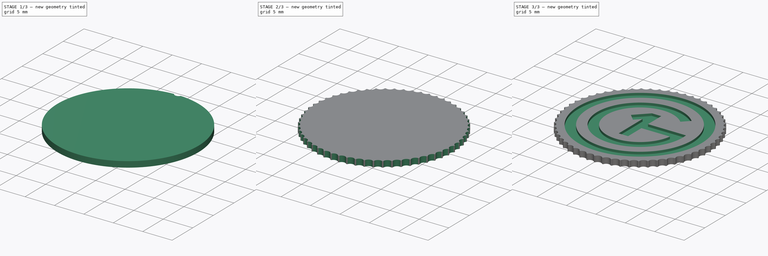
[diagram: build sequence overview — one tinted view per stage of 3, left to right]
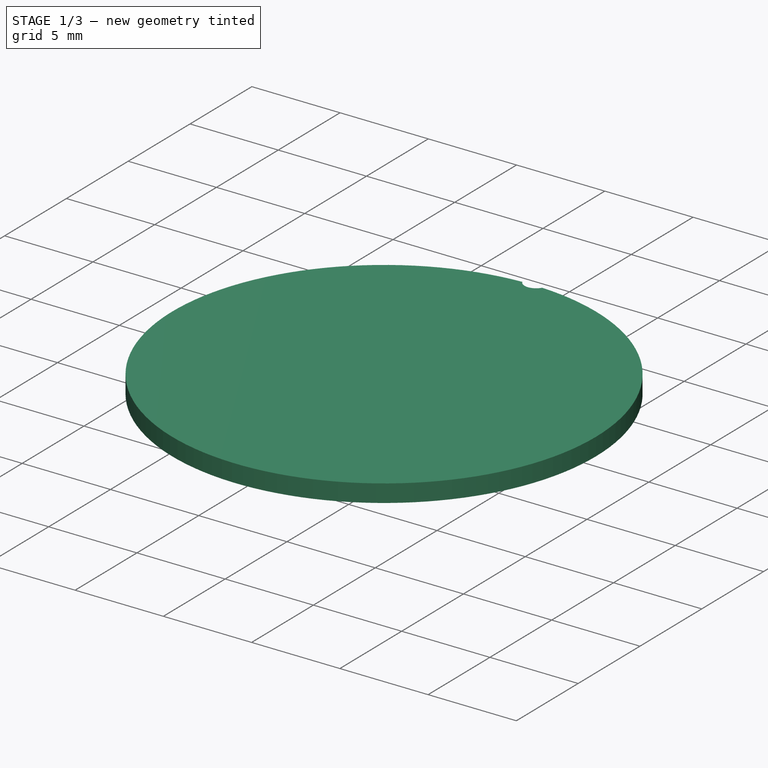
[diagram: stage 1 of 3 — iso view after this stage's code; geometry added in this stage tinted green]
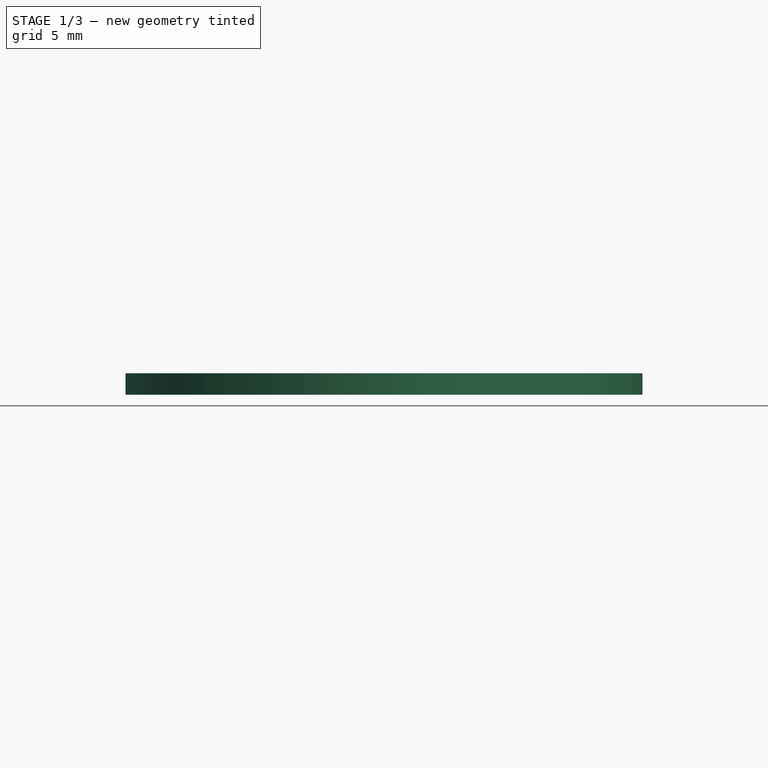
[diagram: stage 1 of 3 — front view after this stage's code; geometry added in this stage tinted green]
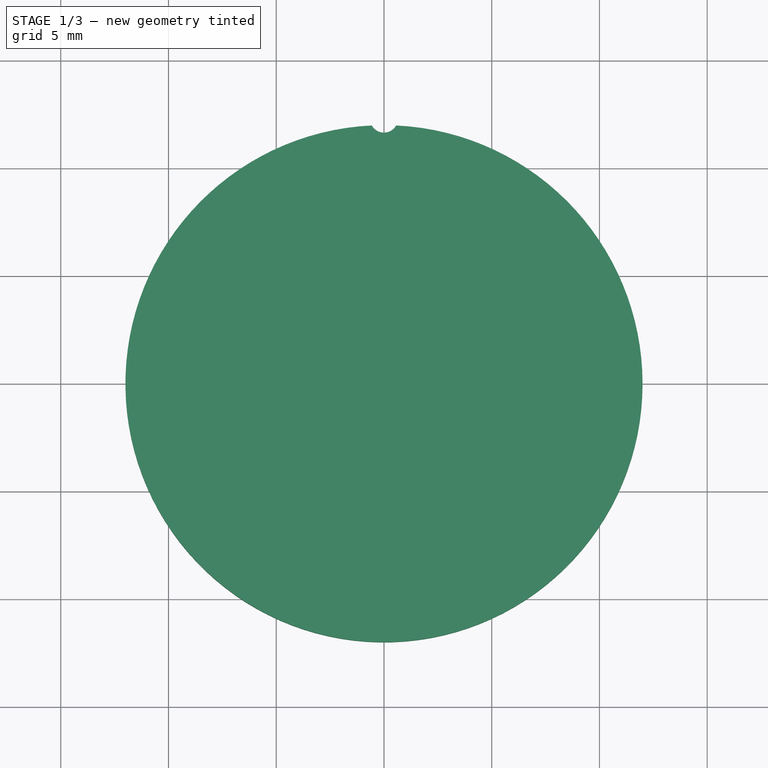
[diagram: stage 1 of 3 — top view after this stage's code; geometry added in this stage tinted green]
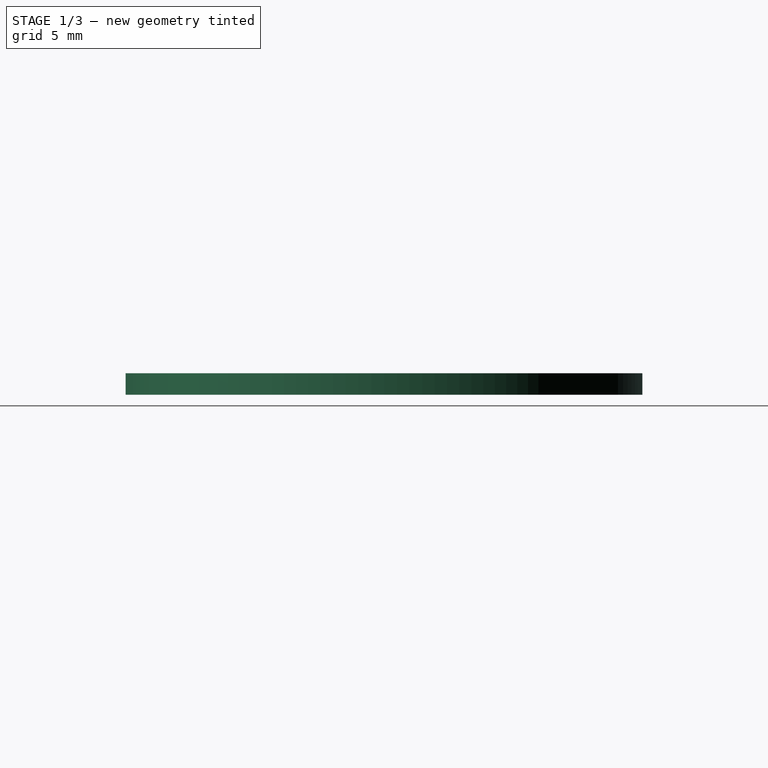
[diagram: stage 1 of 3 — right view after this stage's code; geometry added in this stage tinted green]
FCSTD DOCUMENT  (FreeCAD 0.18.1R)
Label: O1GCoinTest
License: All rights reserved
LicenseURL: http://en.wikipedia.org/wiki/All_rights_reserved
objects: Sketcher::SketchObject×3, PartDesign::Pocket×3, PartDesign::AdditiveCylinder×1, PartDesign::PolarPattern×1, PartDesign::Body×1, App::Part×1
note: 13 computed .brp shape members not serialized (recipe doc carries the construction recipe); baked Part::Feature solids carry a one-line shape summary decoded from their .brp

FEATURE [Sketcher::SketchObject] Sketch
  MapMode = 5
  Support = -> [XY_Plane001]
  sketch-geometry (5):
    g0: LineSegment StartX=-0.644616 StartY=12.3 StartZ=0 EndX=0.644616 EndY=12.3 EndZ=0
    g1: LineSegment [constr] StartX=-0.644616 StartY=12.3 StartZ=0 EndX=0 EndY=0 EndZ=0
    g2: LineSegment [constr] StartX=0 StartY=0 StartZ=0 EndX=0.644616 EndY=12.3 EndZ=0
    g3: ArcOfCircle CenterX=0 CenterY=12.3 CenterZ=0 NormalX=0 NormalY=0 NormalZ=1 AngleXU=0 Radius=0.644616 StartAngle=3.14159 EndAngle=6.28319
    g4: Circle [constr] CenterX=0 CenterY=0 CenterZ=0 NormalX=0 NormalY=0 NormalZ=1 AngleXU=0 Radius=12
  constraints (12):
    c: DistanceY(g-1,g0) = 12.3
    c: Symmetric(g0,g0,g-2)
    c: Coincident(g0,g1)
    c: Coincident(g1,g-1)
    c: Coincident(g1,g2)
    c: Coincident(g2,g0)
    c: PointOnObject(g3,g0)
    c: Coincident(g3,g0)
    c: Coincident(g3,g0)
    c: Angle(g2,g1) = 0.10472
    c: Coincident(g4,g-1)
    c: Radius(g4) = 12
FEATURE [PartDesign::AdditiveCylinder] Cylinder
  Angle = 360
  AttacherType = Attacher::AttachEngine3D
  Height = 1
  Radius = 12
FEATURE [PartDesign::Pocket] Pocket
  BaseFeature = -> Cylinder
  Length = 1
  Length2 = 100
  Profile = -> Sketch
  Reversed = true
  Type = 0
  expr: Length = Cylinder.Height
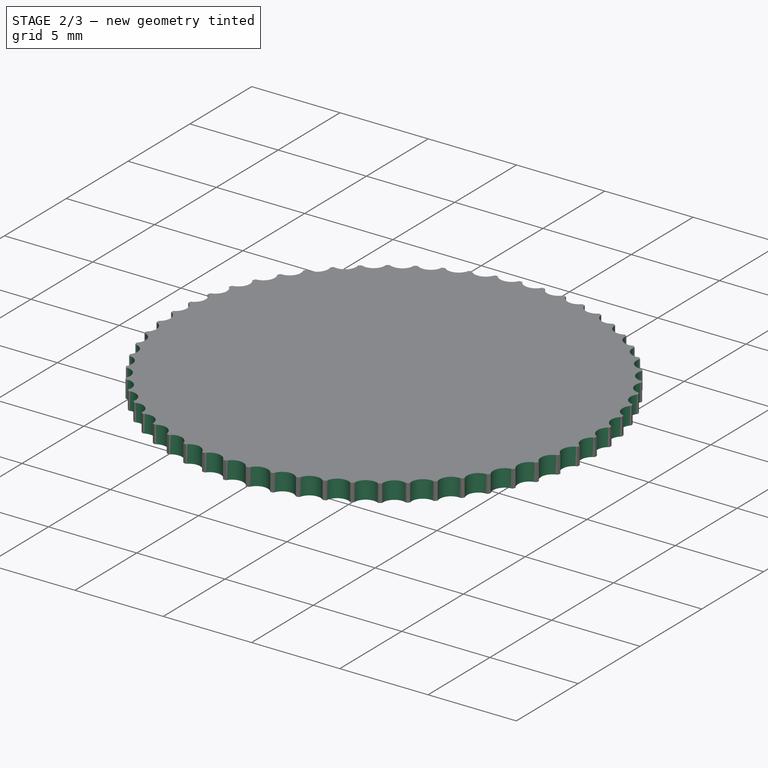
[diagram: stage 2 of 3 — iso view after this stage's code; geometry added in this stage tinted green]
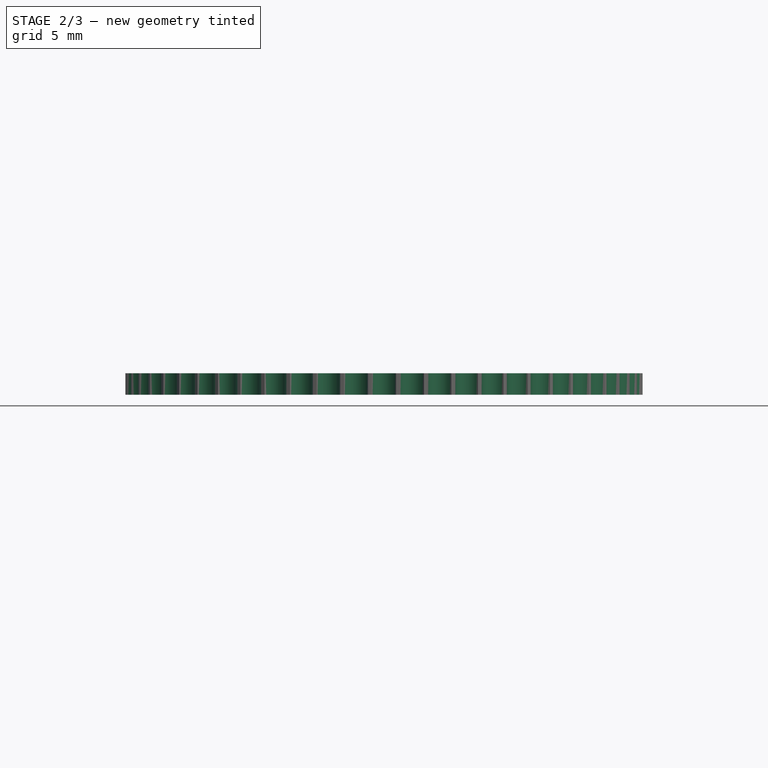
[diagram: stage 2 of 3 — front view after this stage's code; geometry added in this stage tinted green]
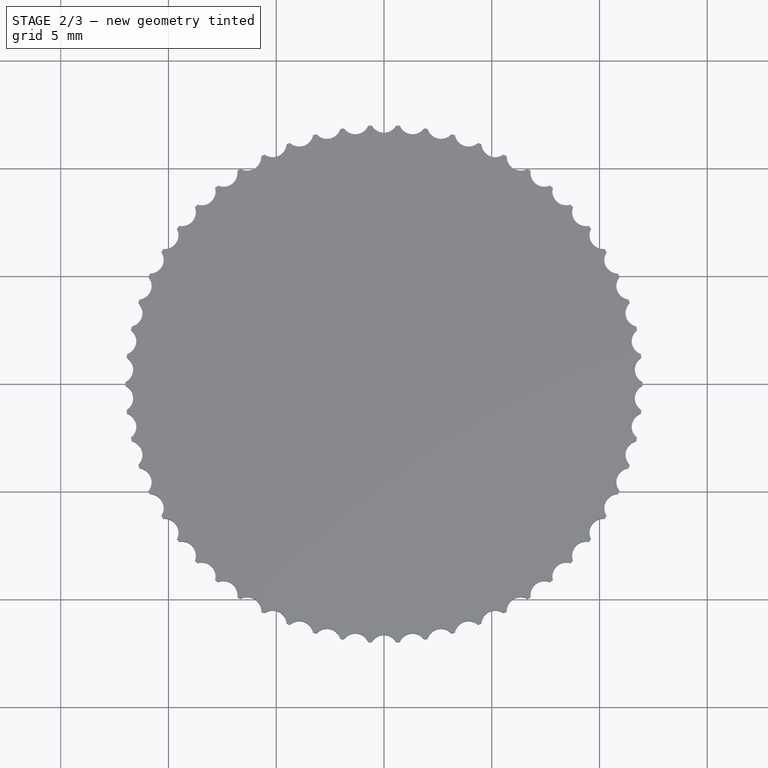
[diagram: stage 2 of 3 — top view after this stage's code; geometry added in this stage tinted green]
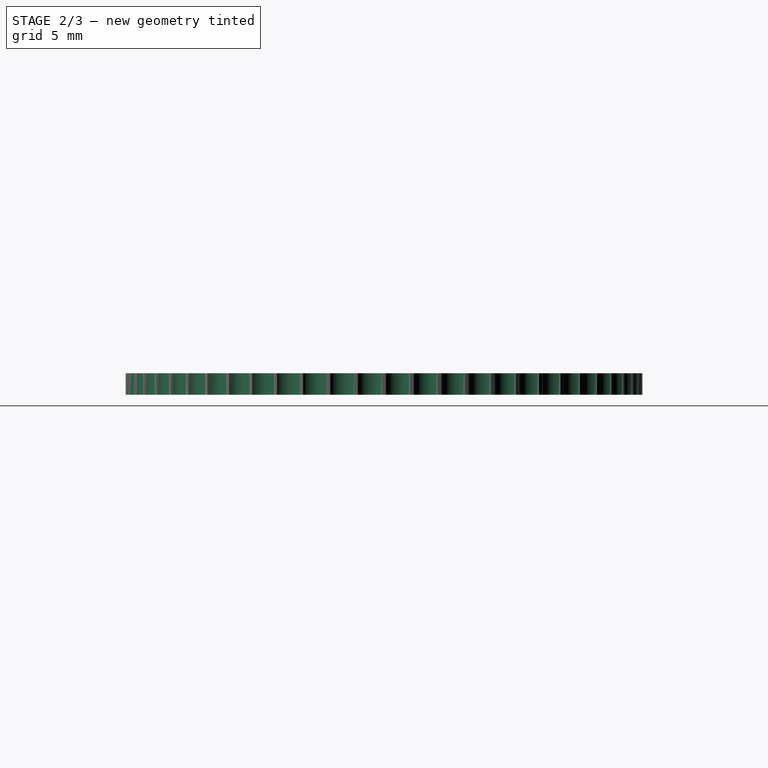
[diagram: stage 2 of 3 — right view after this stage's code; geometry added in this stage tinted green]
FEATURE [PartDesign::PolarPattern] PolarPattern
  Angle = 360
  Axis = -> Sketch [N_Axis]
  BaseFeature = -> Pocket
  Occurrences = 58
  Originals = -> [Pocket]
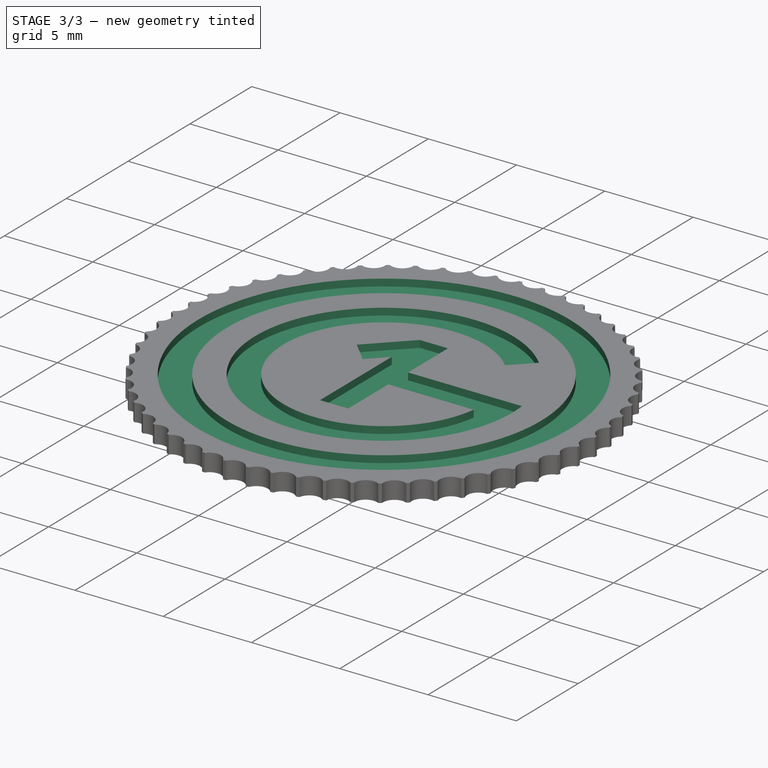
[diagram: stage 3 of 3 — iso view after this stage's code; geometry added in this stage tinted green]
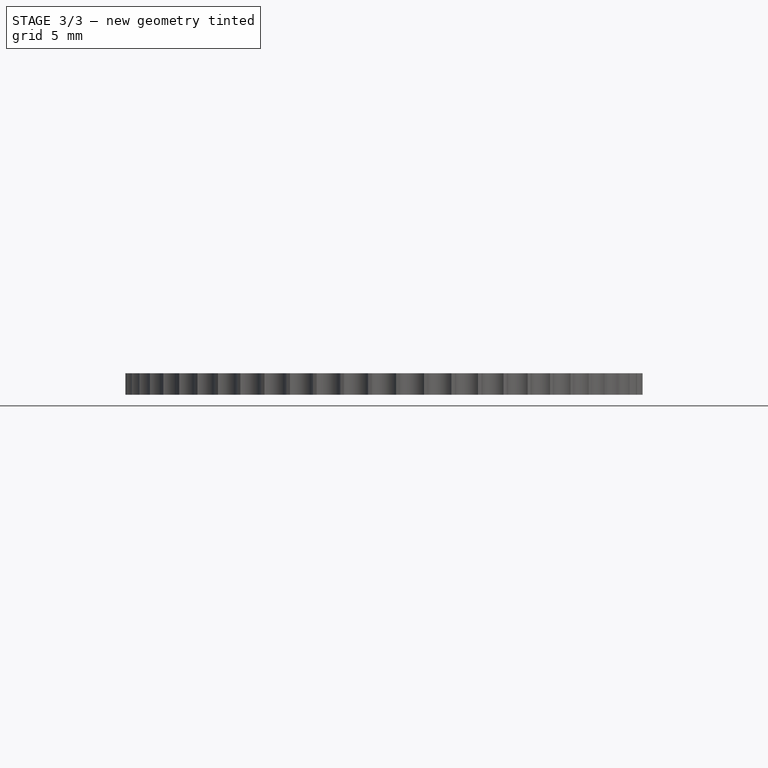
[diagram: stage 3 of 3 — front view after this stage's code; geometry added in this stage tinted green]
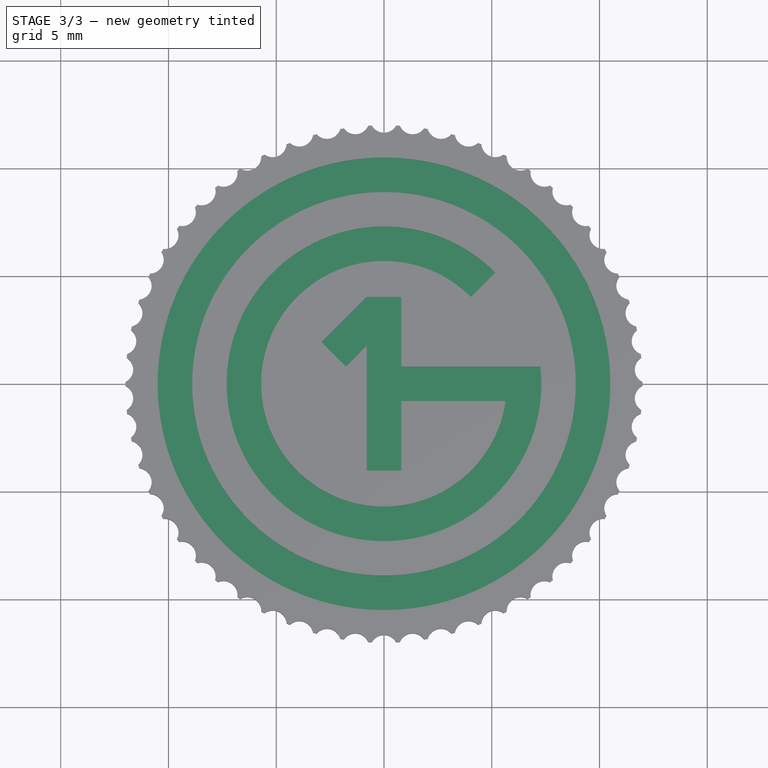
[diagram: stage 3 of 3 — top view after this stage's code; geometry added in this stage tinted green]
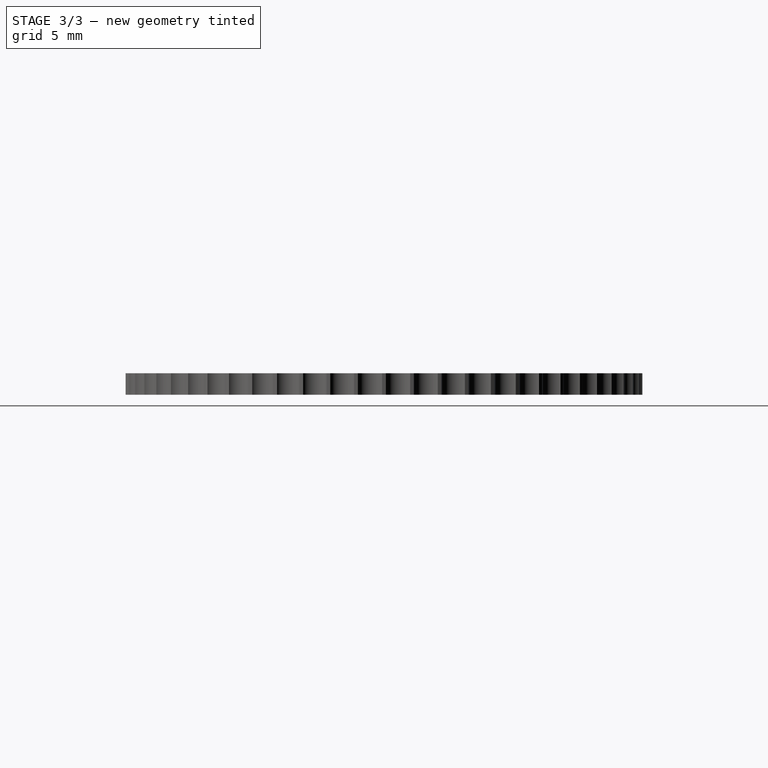
[diagram: stage 3 of 3 — right view after this stage's code; geometry added in this stage tinted green]
FEATURE [Sketcher::SketchObject] Sketch003  label="OF"
  Placement = pos=(0,0,1) rot=(0,0,1;0rad)
  expr: Placement.Base.z = Cylinder.Height
  sketch-geometry (19):
    g0: Circle CenterX=0 CenterY=0 CenterZ=0 NormalX=0 NormalY=0 NormalZ=1 AngleXU=0 Radius=10.5
    g1: Circle CenterX=0 CenterY=0 CenterZ=0 NormalX=0 NormalY=0 NormalZ=1 AngleXU=0 Radius=8.9
    g2: ArcOfCircle [constr] CenterX=0 CenterY=0 CenterZ=0 NormalX=0 NormalY=0 NormalZ=1 AngleXU=0 Radius=7.3 StartAngle=0.785398 EndAngle=6.39299
    g3: ArcOfCircle [constr] CenterX=0 CenterY=0 CenterZ=0 NormalX=0 NormalY=0 NormalZ=1 AngleXU=0 Radius=5.7 StartAngle=0.785398 EndAngle=6.14237
    g4: LineSegment [constr] StartX=4.03051 StartY=4.03051 StartZ=0 EndX=5.16188 EndY=5.16188 EndZ=0
    g5: LineSegment [constr] StartX=0 StartY=0 StartZ=0 EndX=4.03051 EndY=4.03051 EndZ=0
    g6: LineSegment [constr] StartX=5.64358 StartY=-0.8 StartZ=0 EndX=0.8 EndY=-0.8 EndZ=0
    g7: LineSegment [constr] StartX=7.25603 StartY=0.8 StartZ=0 EndX=0.8 EndY=0.8 EndZ=0
    g8: LineSegment [constr] StartX=0.8 StartY=-0.8 StartZ=0 EndX=0.8 EndY=0.8 EndZ=0
    g9: LineSegment [constr] StartX=0.8 StartY=-0.8 StartZ=0 EndX=0.8 EndY=-4.03051 EndZ=0
    g10: LineSegment [constr] StartX=0.8 StartY=-4.03051 StartZ=0 EndX=-0.8 EndY=-4.03051 EndZ=0
    g11: LineSegment [constr] StartX=-0.8 StartY=-4.03051 StartZ=0 EndX=-0.8 EndY=1.76777 EndZ=0
    g12: LineSegment [constr] StartX=-0.8 StartY=1.76777 StartZ=0 EndX=-1.76777 EndY=0.8 EndZ=0
    g13: LineSegment [constr] StartX=-1.76777 StartY=0.8 StartZ=0 EndX=-2.89914 EndY=1.93137 EndZ=0
    g14: LineSegment [constr] StartX=-2.89914 StartY=1.93137 StartZ=0 EndX=-0.8 EndY=4.03051 EndZ=0
    g15: LineSegment [constr] StartX=-0.8 StartY=4.03051 StartZ=0 EndX=0.8 EndY=4.03051 EndZ=0
    g16: LineSegment [constr] StartX=0.8 StartY=4.03051 StartZ=0 EndX=0.8 EndY=0.8 EndZ=0
    g17: LineSegment [constr] StartX=0.8 StartY=4.03051 StartZ=0 EndX=4.03051 EndY=4.03051 EndZ=0
    g18: LineSegment [constr] StartX=-1.76777 StartY=0.8 StartZ=0 EndX=0.8 EndY=0.8 EndZ=0
  constraints (49):
    c: Coincident(g1,g0)
    c: Radius(g0) = 10.5
    c: Radius(g1) = 8.9
    c: Coincident(g0,g-1)
    c: Coincident(g4,g3)
    c: Coincident(g4,g2)
    c: Coincident(g5,g3)
    c: Parallel(g5,g4)
    c: Radius(g2) = 7.3
    c: Radius(g3) = 5.7
    c: Coincident(g6,g3)
    c: Horizontal(g6)
    c: Coincident(g7,g2)
    c: Horizontal(g7)
    c: Coincident(g8,g6)
    c: Coincident(g8,g7)
    c: Symmetric(g7,g6,g-1)
    c: Equal(g8,g4)
    c: Coincident(g6,g9)
    c: Vertical(g9)
    c: Coincident(g9,g10)
    c: Coincident(g10,g11)
    c: Vertical(g11)
    c: Coincident(g11,g12)
    c: Coincident(g12,g13)
    c: Coincident(g13,g14)
    c: Coincident(g14,g15)
    c: Horizontal(g15)
    c: Coincident(g15,g16)
    c: Coincident(g16,g7)
    c: Vertical(g16)
    c: Symmetric(g10,g9,g-2)
    c: Equal(g8,g10)
    c: Equal(g10,g13)
    c: Equal(g13,g15)
    c: Angle(g-1,g5) = 0.785398
    c: Parallel(g5,g12)
    c: Parallel(g12,g14)
    c: Perpendicular(g12,g13)
    c: Equal(g9,g16)
    c: Coincident(g17,g15)
    c: Coincident(g17,g3)
    c: Horizontal(g17)
    c: Coincident(g18,g12)
    c: Coincident(g18,g7)
    c: Horizontal(g18)
    c: Coincident(g2,g3)
    c: Coincident(g2,g5)
    c: Coincident(g2,g-1)
FEATURE [Sketcher::SketchObject] Sketch004  label="1GF"
  Placement = pos=(0,0,1) rot=(0,0,1;0rad)
  expr: Placement.Base.z = Cylinder.Height
  sketch-geometry (19):
    g0: Circle [constr] CenterX=0 CenterY=0 CenterZ=0 NormalX=0 NormalY=0 NormalZ=1 AngleXU=0 Radius=10.5
    g1: Circle [constr] CenterX=0 CenterY=0 CenterZ=0 NormalX=0 NormalY=0 NormalZ=1 AngleXU=0 Radius=8.9
    g2: ArcOfCircle CenterX=0 CenterY=0 CenterZ=0 NormalX=0 NormalY=0 NormalZ=1 AngleXU=0 Radius=7.3 StartAngle=0.785398 EndAngle=6.39299
    g3: ArcOfCircle CenterX=0 CenterY=0 CenterZ=0 NormalX=0 NormalY=0 NormalZ=1 AngleXU=0 Radius=5.7 StartAngle=0.785398 EndAngle=6.14237
    g4: LineSegment StartX=4.03051 StartY=4.03051 StartZ=0 EndX=5.16188 EndY=5.16188 EndZ=0
    g5: LineSegment [constr] StartX=0 StartY=0 StartZ=0 EndX=4.03051 EndY=4.03051 EndZ=0
    g6: LineSegment StartX=5.64358 StartY=-0.8 StartZ=0 EndX=0.8 EndY=-0.8 EndZ=0
    g7: LineSegment StartX=7.25603 StartY=0.8 StartZ=0 EndX=0.8 EndY=0.8 EndZ=0
    g8: LineSegment [constr] StartX=0.8 StartY=-0.8 StartZ=0 EndX=0.8 EndY=0.8 EndZ=0
    g9: LineSegment StartX=0.8 StartY=-0.8 StartZ=0 EndX=0.8 EndY=-4.03051 EndZ=0
    g10: LineSegment StartX=0.8 StartY=-4.03051 StartZ=0 EndX=-0.8 EndY=-4.03051 EndZ=0
    g11: LineSegment StartX=-0.8 StartY=-4.03051 StartZ=0 EndX=-0.8 EndY=1.76777 EndZ=0
    g12: LineSegment StartX=-0.8 StartY=1.76777 StartZ=0 EndX=-1.76777 EndY=0.8 EndZ=0
    g13: LineSegment StartX=-1.76777 StartY=0.8 StartZ=0 EndX=-2.89914 EndY=1.93137 EndZ=0
    g14: LineSegment StartX=-2.89914 StartY=1.93137 StartZ=0 EndX=-0.8 EndY=4.03051 EndZ=0
    g15: LineSegment StartX=-0.8 StartY=4.03051 StartZ=0 EndX=0.8 EndY=4.03051 EndZ=0
    g16: LineSegment StartX=0.8 StartY=4.03051 StartZ=0 EndX=0.8 EndY=0.8 EndZ=0
    g17: LineSegment [constr] StartX=0.8 StartY=4.03051 StartZ=0 EndX=4.03051 EndY=4.03051 EndZ=0
    g18: LineSegment [constr] StartX=-1.76777 StartY=0.8 StartZ=0 EndX=0.8 EndY=0.8 EndZ=0
  constraints (49):
    c: Coincident(g1,g0)
    c: Radius(g0) = 10.5
    c: Radius(g1) = 8.9
    c: Coincident(g0,g-1)
    c: Coincident(g4,g3)
    c: Coincident(g4,g2)
    c: Coincident(g5,g3)
    c: Parallel(g5,g4)
    c: Radius(g2) = 7.3
    c: Radius(g3) = 5.7
    c: Coincident(g6,g3)
    c: Horizontal(g6)
    c: Coincident(g7,g2)
    c: Horizontal(g7)
    c: Coincident(g8,g6)
    c: Coincident(g8,g7)
    c: Symmetric(g7,g6,g-1)
    c: Equal(g8,g4)
    c: Coincident(g6,g9)
    c: Vertical(g9)
    c: Coincident(g9,g10)
    c: Coincident(g10,g11)
    c: Vertical(g11)
    c: Coincident(g11,g12)
    c: Coincident(g12,g13)
    c: Coincident(g13,g14)
    c: Coincident(g14,g15)
    c: Horizontal(g15)
    c: Coincident(g15,g16)
    c: Coincident(g16,g7)
    c: Vertical(g16)
    c: Symmetric(g10,g9,g-2)
    c: Equal(g8,g10)
    c: Equal(g10,g13)
    c: Equal(g13,g15)
    c: Angle(g-1,g5) = 0.785398
    c: Parallel(g5,g12)
    c: Parallel(g12,g14)
    c: Perpendicular(g12,g13)
    c: Equal(g9,g16)
    c: Coincident(g17,g15)
    c: Coincident(g17,g3)
    c: Horizontal(g17)
    c: Coincident(g18,g12)
    c: Coincident(g18,g7)
    c: Horizontal(g18)
    c: Coincident(g2,g3)
    c: Coincident(g2,g5)
    c: Coincident(g2,g-1)
FEATURE [PartDesign::Pocket] Pocket001
  BaseFeature = -> PolarPattern
  Length = 0.4
  Length2 = 100
  Profile = -> Sketch003
  Type = 0
FEATURE [PartDesign::Pocket] Pocket002
  BaseFeature = -> Pocket001
  Length = 0.4
  Length2 = 100
  Profile = -> Sketch004
  Type = 0
FEATURE [PartDesign::Body] Body
  Group = -> [Cylinder,Sketch,Pocket,PolarPattern,Sketch003,Sketch004,Pocket001,Pocket002]
  Origin = -> Origin001
  Tip = -> Pocket002
FEATURE [App::Part] Part
  Group = -> [Body]
  Origin = -> Origin
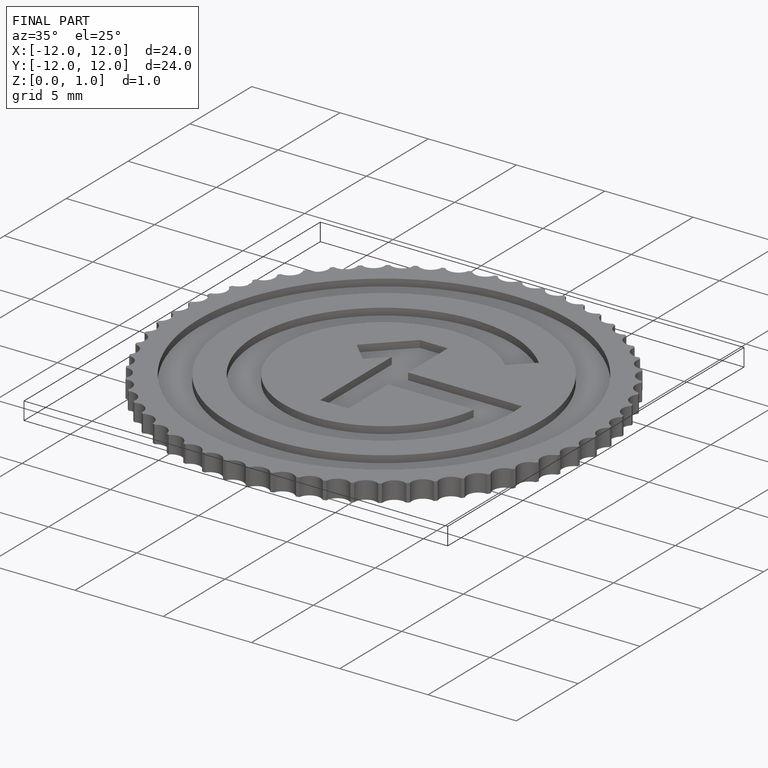
[diagram: finished part — iso view with bounding-box wireframe]
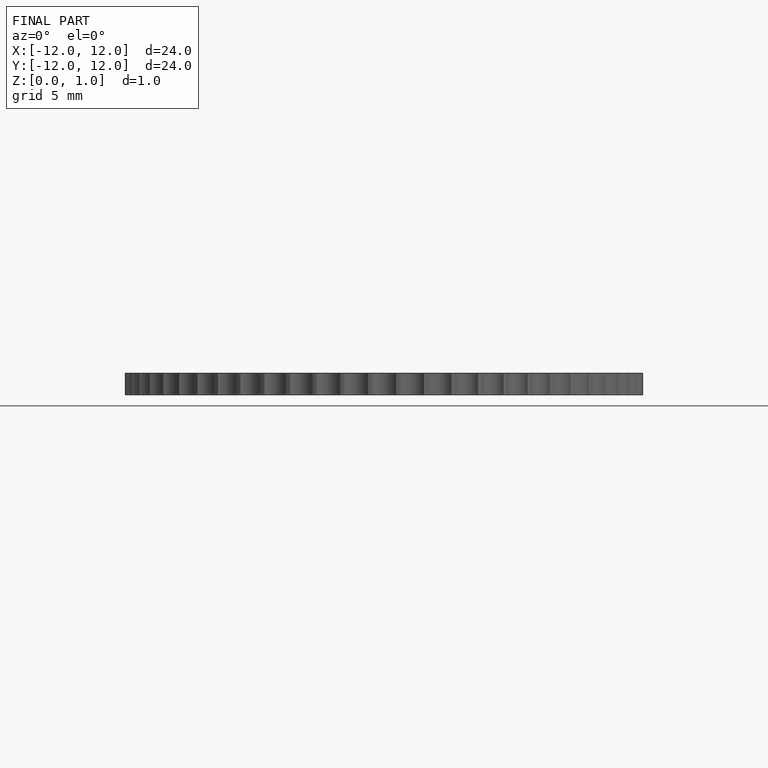
[diagram: finished part — front view with bounding-box wireframe]
